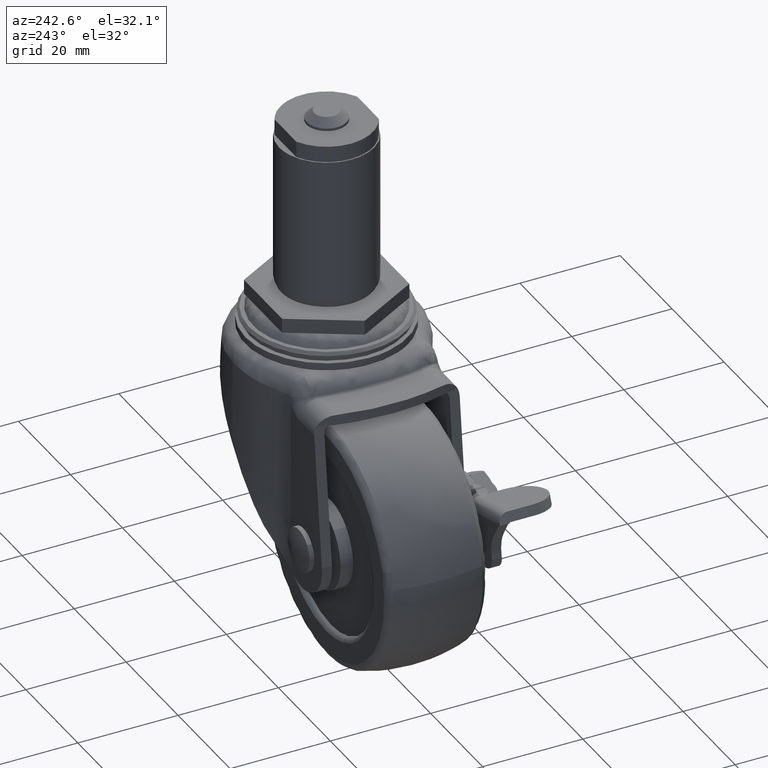
[diagram: clean part render]
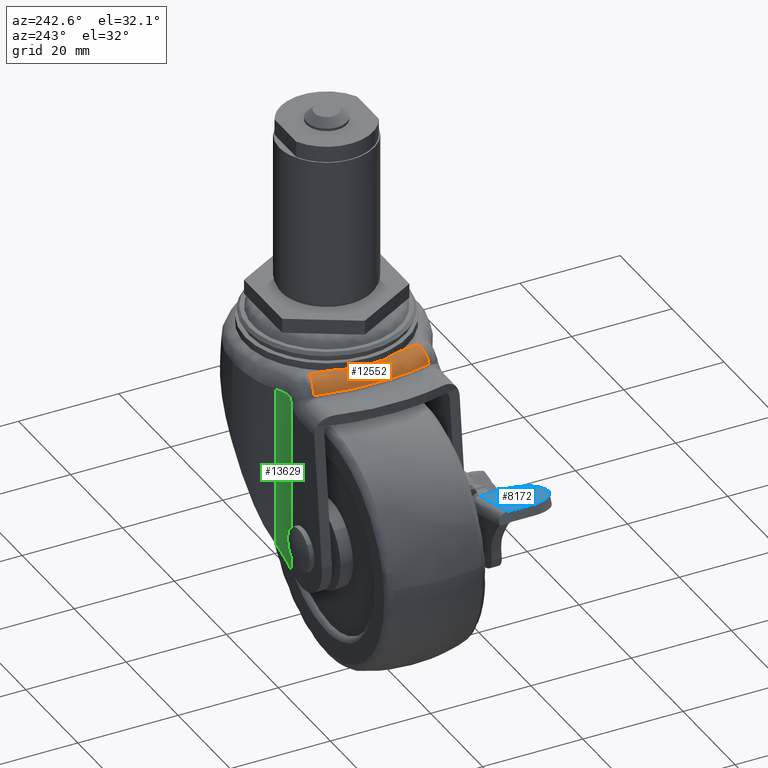
[diagram: same view with three faces highlighted in distinct colors, each labeled with its STEP entity id]
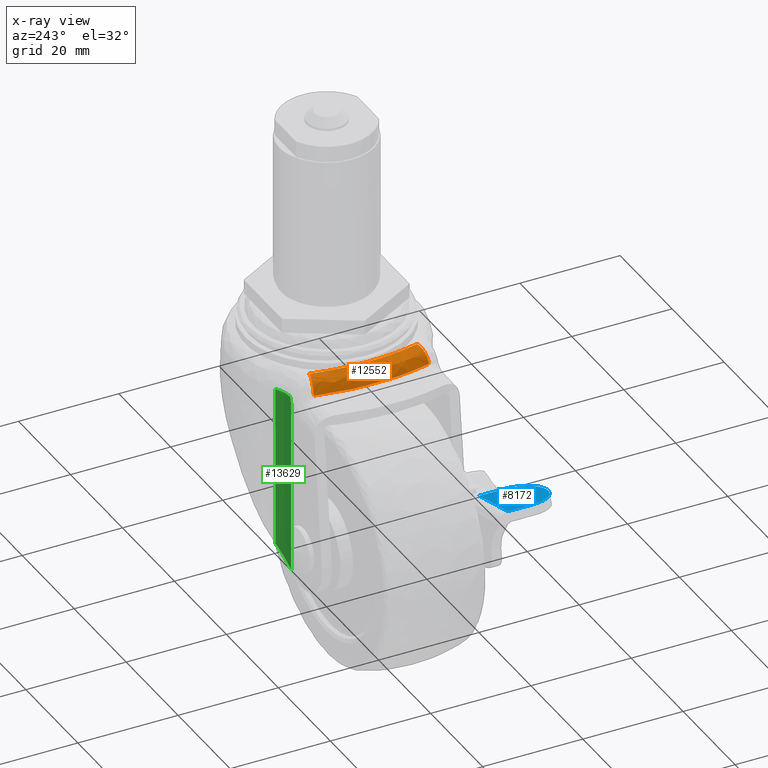
[diagram: x-ray of the same camera — body ghosted, the three highlighted faces saturated]
A machine part, auxiliary view with three faces highlighted in distinct colors.
The next image is the same camera in x-ray (body ghosted, the three faces saturated) — at least one of them is partly hidden behind the body in this view.
Their STEP definitions:

[orange] entity #12552 — the highlighted face is a freeform B-spline surface patch.
#9862=CARTESIAN_POINT('',(-14.869671297431900,6.554035055317600,-7.312300000000000));
#9863=VERTEX_POINT('',#9862);
#9871=CARTESIAN_POINT('',(-14.869671297431900,-6.554035055317600,-7.312300000000000));
#9872=VERTEX_POINT('',#9871);
#11018=CARTESIAN_POINT('',(-14.869671297431900,6.554035055317600,-7.312300000000000));
#11019=CARTESIAN_POINT('',(-15.243844304323160,3.909001110336646,-7.312300000000001));
#11020=CARTESIAN_POINT('',(-15.484673551602789,-0.484198860565311,-7.312299999999999));
#11021=CARTESIAN_POINT('',(-15.109392625723100,-4.858495420145403,-7.312300000000003));
#11022=CARTESIAN_POINT('',(-14.869671297431900,-6.554035055317600,-7.312300000000000));
#11023=B_SPLINE_CURVE_WITH_KNOTS('',3,(#11018,#11019,#11020,#11021,#11022),.UNSPECIFIED.,.F.,.U.,(4,1,4),(2.478348E-009,8.014053052107533,13.151269352027340),.UNSPECIFIED.);
#11024=EDGE_CURVE('',#9863,#9872,#11023,.T.);
#11522=CARTESIAN_POINT('',(-14.079003818672261,10.753691436146021,-7.312300000000000));
#11523=VERTEX_POINT('',#11522);
#11606=CARTESIAN_POINT('',(-14.079003818672261,-10.753691436146021,-7.312300000000000));
#11607=VERTEX_POINT('',#11606);
#11776=CARTESIAN_POINT('',(-17.201224823282601,11.490479694200520,-9.948439557029269));
#11777=VERTEX_POINT('',#11776);
#11783=CARTESIAN_POINT('',(-14.079003818672261,10.753691436146021,-7.312300000000000));
#11784=CARTESIAN_POINT('',(-14.535186331782629,10.861342341925340,-7.311628509510893));
#11785=CARTESIAN_POINT('',(-15.332765847069680,11.049556827978909,-7.491719818556303));
#11786=CARTESIAN_POINT('',(-16.234266371092090,11.262294811532509,-8.113509783335815));
#11787=CARTESIAN_POINT('',(-16.877821755877381,11.414162360375990,-8.915678579646832));
#11788=CARTESIAN_POINT('',(-17.126412106814161,11.472825232531800,-9.557559175064551));
#11789=CARTESIAN_POINT('',(-17.201224823282601,11.490479694200520,-9.948439557029269));
#11790=B_SPLINE_CURVE_WITH_KNOTS('',3,(#11783,#11784,#11785,#11786,#11787,#11788,#11789),.UNSPECIFIED.,.F.,.U.,(4,1,1,1,4),(0.000000210699308,1.405842991199449,2.460185033970227,3.303724742704070,4.498691996524103),.UNSPECIFIED.);
#11791=EDGE_CURVE('',#11523,#11777,#11790,.T.);
#11847=CARTESIAN_POINT('',(-17.201224823282601,-11.490479694200520,-9.948439557029269));
#11848=VERTEX_POINT('',#11847);
#11866=CARTESIAN_POINT('',(-17.201224823282601,-11.490479694200520,-9.948439557029269));
#11867=CARTESIAN_POINT('',(-17.148265069904131,-11.477982140574090,-9.672583198901739));
#11868=CARTESIAN_POINT('',(-17.001692651946300,-11.443393674111711,-9.224724215265633));
#11869=CARTESIAN_POINT('',(-16.660973403556579,-11.362990031596990,-8.639433520840198));
#11870=CARTESIAN_POINT('',(-16.176721179871340,-11.248715176671199,-8.073808655023594));
#11871=CARTESIAN_POINT('',(-15.332765270935591,-11.049556692021550,-7.491731345324238));
#11872=CARTESIAN_POINT('',(-14.535186013600340,-10.861342266839999,-7.311627301625265));
#11873=CARTESIAN_POINT('',(-14.079003818672261,-10.753691436146021,-7.312300000000000));
#11874=B_SPLINE_CURVE_WITH_KNOTS('',3,(#11866,#11867,#11868,#11869,#11870,#11871,#11872,#11873),.UNSPECIFIED.,.F.,.U.,(4,1,1,1,1,4),(0.000000210698746,0.843503323110989,1.405842991199330,2.038507173252778,3.092849216023689,4.498691996524070),.UNSPECIFIED.);
#11875=EDGE_CURVE('',#11848,#11607,#11874,.T.);
#12488=CARTESIAN_POINT('',(-17.201224823282601,11.490479694200520,-9.948439557029269));
#12489=CARTESIAN_POINT('',(-17.950598596251890,8.316905590154684,-9.948439557029261));
#12490=CARTESIAN_POINT('',(-18.646828172985281,3.145624292530508,-9.948439557029280));
#12491=CARTESIAN_POINT('',(-18.478551694485180,-4.594861207513548,-9.948439557029271));
#12492=CARTESIAN_POINT('',(-17.783877038489980,-9.022122204890557,-9.948439557029271));
#12493=CARTESIAN_POINT('',(-17.201224823282601,-11.490479694200520,-9.948439557029269));
#12494=B_SPLINE_CURVE_WITH_KNOTS('',3,(#12488,#12489,#12490,#12491,#12492,#12493),.UNSPECIFIED.,.F.,.U.,(4,1,1,4),(2.518874E-009,9.782446142725505,15.579433885086351,23.188003272210739),.UNSPECIFIED.);
#12495=EDGE_CURVE('',#11777,#11848,#12494,.T.);
#12515=CARTESIAN_POINT('',(-13.622645938167130,-11.743366036656662,-7.318708305283303));
#12516=CARTESIAN_POINT('',(-16.679522145242860,0.000000755607090,-7.318708305283302));
#12517=CARTESIAN_POINT('',(-13.622645569751693,11.743367451969853,-7.318708305283304));
#12518=CARTESIAN_POINT('',(-16.568206793193518,-12.510115049397671,-7.127873976234077));
#12519=CARTESIAN_POINT('',(-19.824672862880227,0.000000804942262,-7.127873976234075));
#12520=CARTESIAN_POINT('',(-16.568206400723472,12.510116557119636,-7.127873976234076));
#12521=CARTESIAN_POINT('',(-16.957552369603011,-12.611464283387399,-10.150916962241205));
#12522=CARTESIAN_POINT('',(-20.240400318303060,0.000000811463407,-10.150916962241203));
#12523=CARTESIAN_POINT('',(-16.957551973953407,12.611465803323993,-10.150916962241203));
#12531=(BOUNDED_SURFACE()B_SPLINE_SURFACE(2,2,((#12515,#12518,#12521),(#12516,#12519,#12522),(#12517,#12520,#12523)),.UNSPECIFIED.,.F.,.F.,.U.)B_SPLINE_SURFACE_WITH_KNOTS((3,3),(3,3),(0.0,25.636313123055910),(0.0,5.152806885058803),.UNSPECIFIED.)GEOMETRIC_REPRESENTATION_ITEM()RATIONAL_B_SPLINE_SURFACE(((0.873778402036262,0.638196293608796,0.871568787921960),(0.845599221556921,0.617614589486860,0.843460867060357),(0.873778405545599,0.638196296171970,0.871568791422422)))REPRESENTATION_ITEM('')SURFACE());
#12532=CARTESIAN_POINT('',(-14.079003818672261,10.753691436146021,-7.312300000000000));
#12533=CARTESIAN_POINT('',(-14.406292329057459,9.366812745426643,-7.312300000000008));
#12534=CARTESIAN_POINT('',(-14.670217815771460,7.964980869378928,-7.312299999999997));
#12535=CARTESIAN_POINT('',(-14.869671297431900,6.554035055317600,-7.312300000000000));
#12536=B_SPLINE_CURVE_WITH_KNOTS('',3,(#12532,#12533,#12534,#12535),.UNSPECIFIED.,.F.,.U.,(4,4),(2.855947E-010,4.274928073323606),.UNSPECIFIED.);
#12537=EDGE_CURVE('',#11523,#9863,#12536,.T.);
#12538=ORIENTED_EDGE('',*,*,#12537,.F.);
#12539=ORIENTED_EDGE('',*,*,#11791,.T.);
#12540=ORIENTED_EDGE('',*,*,#12495,.T.);
#12541=ORIENTED_EDGE('',*,*,#11875,.T.);
#12542=CARTESIAN_POINT('',(-14.869671297431900,-6.554035055317600,-7.312300000000000));
#12543=CARTESIAN_POINT('',(-14.670214657508209,-7.964980596645078,-7.312300000000004));
#12544=CARTESIAN_POINT('',(-14.406295370272479,-9.366813639865816,-7.312299999999993));
#12545=CARTESIAN_POINT('',(-14.079003818672261,-10.753691436146021,-7.312300000000000));
#12546=B_SPLINE_CURVE_WITH_KNOTS('',3,(#12542,#12543,#12544,#12545),.UNSPECIFIED.,.F.,.U.,(4,4),(2.854303E-010,4.274928073323606),.UNSPECIFIED.);
#12547=EDGE_CURVE('',#9872,#11607,#12546,.T.);
#12548=ORIENTED_EDGE('',*,*,#12547,.F.);
#12549=ORIENTED_EDGE('',*,*,#11024,.F.);
#12550=EDGE_LOOP('',(#12538,#12539,#12540,#12541,#12548,#12549));
#12551=FACE_OUTER_BOUND('',#12550,.T.);
#12552=ADVANCED_FACE('',(#12551),#12531,.T.);

[blue] entity #8172 — the highlighted face is a freeform B-spline surface patch.
#4406=CARTESIAN_POINT('',(-34.343842595860650,-17.606532999999949,-28.297007133559251));
#4407=VERTEX_POINT('',#4406);
#4413=CARTESIAN_POINT('',(-39.687832662203697,-23.106532999999999,-26.885268325201849));
#4414=VERTEX_POINT('',#4413);
#4415=CARTESIAN_POINT('',(-39.687832662203697,-23.106532999999999,-26.885268325201849));
#4416=CARTESIAN_POINT('',(-39.208087486309637,-23.107933318440359,-27.012004130194729));
#4417=CARTESIAN_POINT('',(-38.182761146548167,-22.966697450215090,-27.282867841972362));
#4418=CARTESIAN_POINT('',(-36.914010723379640,-22.379323202816529,-27.618037666068279));
#4419=CARTESIAN_POINT('',(-35.971325077144932,-21.602618038650991,-27.867069923679100));
#4420=CARTESIAN_POINT('',(-35.311806978171312,-20.815793622913890,-28.041296912048509));
#4421=CARTESIAN_POINT('',(-34.779927448899478,-19.877261816177668,-28.181805214557020));
#4422=CARTESIAN_POINT('',(-34.426430958129707,-18.779181538034770,-28.275189503906692));
#4423=CARTESIAN_POINT('',(-34.344657956039903,-17.989962398966220,-28.296791737274301));
#4424=CARTESIAN_POINT('',(-34.343842595860650,-17.606532999999949,-28.297007133559251));
#4425=B_SPLINE_CURVE_WITH_KNOTS('',3,(#4415,#4416,#4417,#4418,#4419,#4420,#4421,#4422,#4423,#4424),.UNSPECIFIED.,.F.,.U.,(4,1,1,1,1,1,1,4),(0.000000206645767,1.488643364458288,3.180326849139352,4.263012841701578,5.210246456665031,6.292922646112439,7.510942166317874,8.661231338359475),.UNSPECIFIED.);
#4426=EDGE_CURVE('',#4414,#4407,#4425,.T.);
#4450=CARTESIAN_POINT('',(-45.336196999999899,-17.606532999999949,-25.393122000000002));
#4451=VERTEX_POINT('',#4450);
#4452=CARTESIAN_POINT('',(-39.963144388285201,-23.106532999999999,-26.812538353162200));
#4453=VERTEX_POINT('',#4452);
#4454=CARTESIAN_POINT('',(-45.336196999999899,-17.606532999999949,-25.393122000000002));
#4455=CARTESIAN_POINT('',(-45.333731107986701,-18.104056514651621,-25.393773422515601));
#4456=CARTESIAN_POINT('',(-45.216074816280347,-18.962637976609781,-25.424855058332120));
#4457=CARTESIAN_POINT('',(-44.775201390073178,-20.126274967842100,-25.541321989898769));
#4458=CARTESIAN_POINT('',(-44.248380949174013,-20.965280584616700,-25.680493816983279));
#4459=CARTESIAN_POINT('',(-43.443961668458194,-21.863022439759810,-25.892999810197772));
#4460=CARTESIAN_POINT('',(-42.417900980149540,-22.583140564987030,-26.164057517160440));
#4461=CARTESIAN_POINT('',(-41.122297305005340,-23.027167740915839,-26.506321250017049));
#4462=CARTESIAN_POINT('',(-40.334820276233231,-23.108462069709962,-26.714351554789161));
#4463=CARTESIAN_POINT('',(-39.963144388285201,-23.106532999999999,-26.812538353162200));
#4464=B_SPLINE_CURVE_WITH_KNOTS('',3,(#4454,#4455,#4456,#4457,#4458,#4459,#4460,#4461,#4462,#4463),.UNSPECIFIED.,.F.,.U.,(4,1,1,1,1,1,1,4),(0.000000206718671,1.492537783785801,2.578042285504911,3.731363282628968,4.477609342332174,6.241544451206966,7.530598838906054,8.683898443102029),.UNSPECIFIED.);
#4465=EDGE_CURVE('',#4451,#4453,#4464,.T.);
#6283=CARTESIAN_POINT('',(-45.336196999999899,-12.606532825467060,-25.393122000000002));
#6284=VERTEX_POINT('',#6283);
#6296=CARTESIAN_POINT('',(-34.343842595860750,-12.606532825467060,-28.297007133559301));
#6297=VERTEX_POINT('',#6296);
#6298=CARTESIAN_POINT('',(-34.343842595860750,-12.606532825467060,-28.297007133559301));
#6299=CARTESIAN_POINT('',(-45.336196999999899,-12.606532825467060,-25.393122000000002));
#6300=QUASI_UNIFORM_CURVE('',1,(#6298,#6299),.UNSPECIFIED.,.F.,.U.);
#6301=EDGE_CURVE('',#6297,#6284,#6300,.T.);
#6712=CARTESIAN_POINT('',(-39.687832662203697,-23.106532999999999,-26.885268325201849));
#6713=CARTESIAN_POINT('',(-39.963144388285201,-23.106532999999999,-26.812538353162200));
#6714=QUASI_UNIFORM_CURVE('',1,(#6712,#6713),.UNSPECIFIED.,.F.,.U.);
#6715=EDGE_CURVE('',#4414,#4453,#6714,.T.);
#8142=CARTESIAN_POINT('',(-34.343842595860650,-17.606532999999949,-28.297007133559251));
#8143=CARTESIAN_POINT('',(-34.343842595860750,-12.606532825467060,-28.297007133559301));
#8144=QUASI_UNIFORM_CURVE('',1,(#8142,#8143),.UNSPECIFIED.,.F.,.U.);
#8145=EDGE_CURVE('',#4407,#6297,#8144,.T.);
#8155=CARTESIAN_POINT('',(-45.885265120453752,-23.631008049419989,-25.248072932832290));
#8156=CARTESIAN_POINT('',(-33.794773394334413,-23.631008049419989,-28.442056486317259));
#8157=CARTESIAN_POINT('',(-45.885265120453752,-12.082058339310970,-25.248072932832290));
#8158=CARTESIAN_POINT('',(-33.794773394334413,-12.082058339310970,-28.442056486317259));
#8159=B_SPLINE_SURFACE_WITH_KNOTS('',1,1,((#8155,#8157),(#8156,#8158)),.UNSPECIFIED.,.F.,.F.,.U.,(2,2),(2,2),(0.0,12.505259738177880),(0.0,11.548949710109030),.UNSPECIFIED.);
#8160=CARTESIAN_POINT('',(-45.336196999999899,-17.606532999999949,-25.393122000000002));
#8161=CARTESIAN_POINT('',(-45.336196999999899,-12.606532825467060,-25.393122000000002));
#8162=QUASI_UNIFORM_CURVE('',1,(#8160,#8161),.UNSPECIFIED.,.F.,.U.);
#8163=EDGE_CURVE('',#4451,#6284,#8162,.T.);
#8164=ORIENTED_EDGE('',*,*,#8163,.F.);
#8165=ORIENTED_EDGE('',*,*,#4465,.T.);
#8166=ORIENTED_EDGE('',*,*,#6715,.F.);
#8167=ORIENTED_EDGE('',*,*,#4426,.T.);
#8168=ORIENTED_EDGE('',*,*,#8145,.T.);
#8169=ORIENTED_EDGE('',*,*,#6301,.T.);
#8170=EDGE_LOOP('',(#8164,#8165,#8166,#8167,#8168,#8169));
#8171=FACE_OUTER_BOUND('',#8170,.T.);
#8172=ADVANCED_FACE('',(#8171),#8159,.T.);

[green] entity #13629 — the highlighted face is a freeform B-spline surface patch.
#11395=CARTESIAN_POINT('',(-10.465135058398459,15.678124719535800,-11.062300000000000));
#11396=VERTEX_POINT('',#11395);
#11540=CARTESIAN_POINT('',(-13.920182243606860,14.513534031262800,-11.062300000000000));
#11541=VERTEX_POINT('',#11540);
#11542=CARTESIAN_POINT('',(-13.920182243606860,14.513534031262800,-11.062300000000000));
#11543=CARTESIAN_POINT('',(-13.268193872007981,14.553503054101469,-11.062300000000009));
#11544=CARTESIAN_POINT('',(-12.051880551646891,14.802653350065340,-11.062299999999990));
#11545=CARTESIAN_POINT('',(-10.944423265143660,15.358014099496140,-11.062300000000000));
#11546=CARTESIAN_POINT('',(-10.465135058398459,15.678124719535800,-11.062300000000000));
#11547=B_SPLINE_CURVE_WITH_KNOTS('',3,(#11542,#11543,#11544,#11545,#11546),.UNSPECIFIED.,.F.,.U.,(4,1,4),(0.000000016868665,1.959566128958798,3.688610117246592),.UNSPECIFIED.);
#11548=EDGE_CURVE('',#11541,#11396,#11547,.T.);
#12018=CARTESIAN_POINT('',(-14.351389509793160,14.500240000000000,-12.355357293252419));
#12019=VERTEX_POINT('',#12018);
#12041=CARTESIAN_POINT('',(-14.351389509793160,14.500240000000000,-12.355357293252419));
#12042=CARTESIAN_POINT('',(-14.154098045140170,14.502317938518400,-11.944712170982831));
#12043=CARTESIAN_POINT('',(-14.008812726140651,14.506795130447610,-11.509133384809131));
#12044=CARTESIAN_POINT('',(-13.920182243606860,14.513534031262800,-11.062300000000000));
#12045=B_SPLINE_CURVE_WITH_KNOTS('',3,(#12041,#12042,#12043,#12044),.UNSPECIFIED.,.F.,.U.,(4,4),(5.287212E-009,1.366752155279345),.UNSPECIFIED.);
#12046=EDGE_CURVE('',#12019,#11541,#12045,.T.);
#13573=CARTESIAN_POINT('',(-10.299056317297122,15.792473738405649,-48.039190364240362));
#13574=CARTESIAN_POINT('',(-10.299056317297122,15.792473738405649,-10.137877740893989));
#13575=CARTESIAN_POINT('',(-12.210856489577122,14.435156192366922,-48.039190364240362));
#13576=CARTESIAN_POINT('',(-12.210856489577122,14.435156192366922,-10.137877740893993));
#13577=CARTESIAN_POINT('',(-14.554499505563667,14.503187311216099,-48.039190364240376));
#13578=CARTESIAN_POINT('',(-14.554499505563667,14.503187311216099,-10.137877740893991));
#13586=(BOUNDED_SURFACE()B_SPLINE_SURFACE(1,2,((#13573,#13575,#13577),(#13574,#13576,#13578)),.UNSPECIFIED.,.F.,.F.,.U.)B_SPLINE_SURFACE_WITH_KNOTS((2,2),(3,3),(0.0,37.901312623346392),(0.0,4.564619270245890),.UNSPECIFIED.)GEOMETRIC_REPRESENTATION_ITEM()RATIONAL_B_SPLINE_SURFACE(((0.999612166639089,0.944206879762444,0.991931359706531),(0.999612166639089,0.944206879762444,0.991931359706531)))REPRESENTATION_ITEM('')SURFACE());
#13587=ORIENTED_EDGE('',*,*,#12046,.T.);
#13588=ORIENTED_EDGE('',*,*,#11548,.T.);
#13589=CARTESIAN_POINT('',(-10.465135058398459,15.678124719535800,-43.384241657276149));
#13590=VERTEX_POINT('',#13589);
#13591=CARTESIAN_POINT('',(-10.465135058398459,15.678124719535800,-43.384241657276149));
#13592=CARTESIAN_POINT('',(-10.465135058398459,15.678124719535800,-11.062300000000000));
#13593=QUASI_UNIFORM_CURVE('',1,(#13591,#13592),.UNSPECIFIED.,.F.,.U.);
#13594=EDGE_CURVE('',#13590,#11396,#13593,.T.);
#13595=ORIENTED_EDGE('',*,*,#13594,.F.);
#13596=CARTESIAN_POINT('',(-11.164195731720181,15.267921146647900,-44.295090351913252));
#13597=VERTEX_POINT('',#13596);
#13598=CARTESIAN_POINT('',(-11.164195731720181,15.267921146647900,-44.295090351913252));
#13599=CARTESIAN_POINT('',(-10.925352759260401,15.389850797944240,-43.989559505366799));
#13600=CARTESIAN_POINT('',(-10.692087962022599,15.526726592128350,-43.685625303448340));
#13601=CARTESIAN_POINT('',(-10.465135058398459,15.678124719535800,-43.384241657276149));
#13602=B_SPLINE_CURVE_WITH_KNOTS('',3,(#13598,#13599,#13600,#13601),.UNSPECIFIED.,.F.,.U.,(4,4),(3.749820E-010,1.219582069794620),.UNSPECIFIED.);
#13603=EDGE_CURVE('',#13597,#13590,#13602,.T.);
#13604=ORIENTED_EDGE('',*,*,#13603,.F.);
#13605=CARTESIAN_POINT('',(-14.351389509793160,14.500240000000000,-47.137314989502798));
#13606=VERTEX_POINT('',#13605);
#13607=CARTESIAN_POINT('',(-14.351389509793160,14.500240000000000,-47.137314989502798));
#13608=CARTESIAN_POINT('',(-14.035729355324710,14.500240000000000,-46.944060066129431));
#13609=CARTESIAN_POINT('',(-13.733968673631130,14.521422202452881,-46.739312031517969));
#13610=CARTESIAN_POINT('',(-13.155424025842740,14.596996349259660,-46.307995173417858));
#13611=CARTESIAN_POINT('',(-12.878656390046070,14.651448925160590,-46.081421449943662));
#13612=CARTESIAN_POINT('',(-12.348498433869111,14.787318924433579,-45.606859328979823));
#13613=CARTESIAN_POINT('',(-12.095115429126650,14.868770754841810,-45.358870480215543));
#13614=CARTESIAN_POINT('',(-11.731996431438411,15.007507973325190,-44.970633619368890));
#13615=CARTESIAN_POINT('',(-11.613591292824511,15.056616193567869,-44.838265784607962));
#13616=CARTESIAN_POINT('',(-11.383823107685370,15.159153619517820,-44.569695055593300));
#13617=CARTESIAN_POINT('',(-11.272358958136710,15.212606921870099,-44.433407123186463));
#13618=CARTESIAN_POINT('',(-11.164195731720181,15.267921146647900,-44.295090351913252));
#13619=B_SPLINE_CURVE_WITH_KNOTS('',3,(#13607,#13608,#13609,#13610,#13611,#13612,#13613,#13614,#13615,#13616,#13617,#13618),.UNSPECIFIED.,.F.,.U.,(4,2,2,2,2,4),(0.0,0.249999999999999,0.499999999999998,0.749999999999997,0.874999999999998,1.0),.UNSPECIFIED.);
#13620=EDGE_CURVE('',#13606,#13597,#13619,.T.);
#13621=ORIENTED_EDGE('',*,*,#13620,.F.);
#13622=CARTESIAN_POINT('',(-14.351389509793160,14.500240000000000,-12.355357293252419));
#13623=CARTESIAN_POINT('',(-14.351389509793160,14.500240000000000,-47.137314989502798));
#13624=QUASI_UNIFORM_CURVE('',1,(#13622,#13623),.UNSPECIFIED.,.F.,.U.);
#13625=EDGE_CURVE('',#12019,#13606,#13624,.T.);
#13626=ORIENTED_EDGE('',*,*,#13625,.F.);
#13627=EDGE_LOOP('',(#13587,#13588,#13595,#13604,#13621,#13626));
#13628=FACE_OUTER_BOUND('',#13627,.T.);
#13629=ADVANCED_FACE('',(#13628),#13586,.F.);